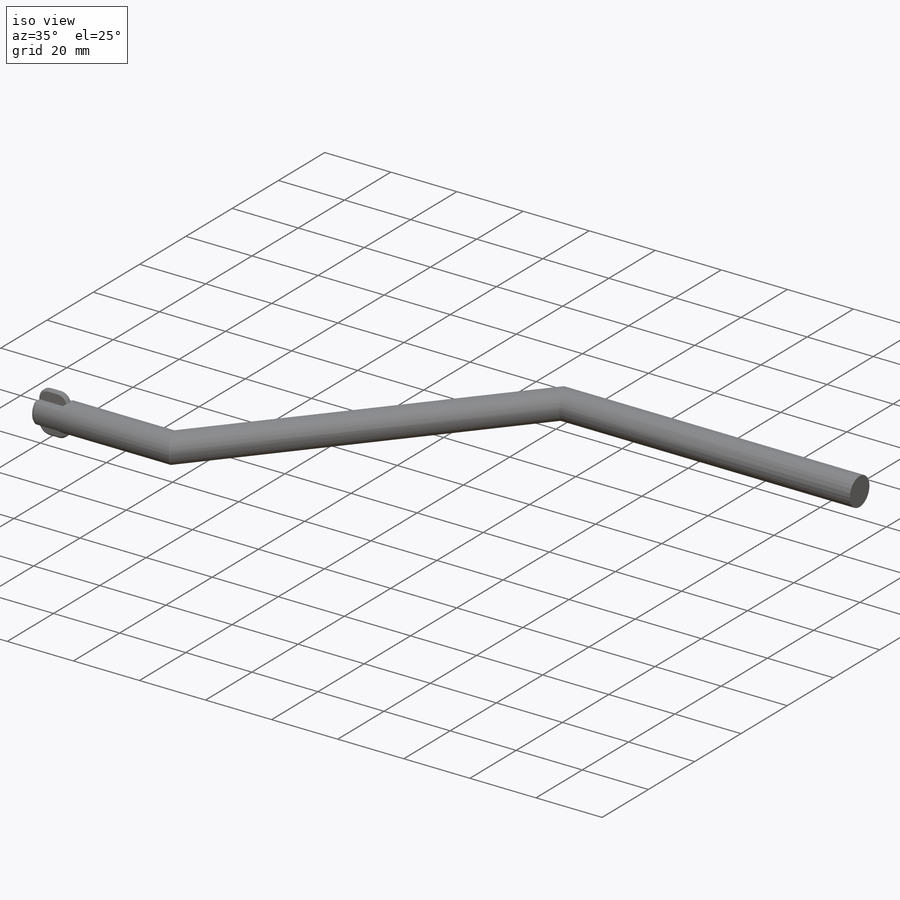
[diagram: iso view]
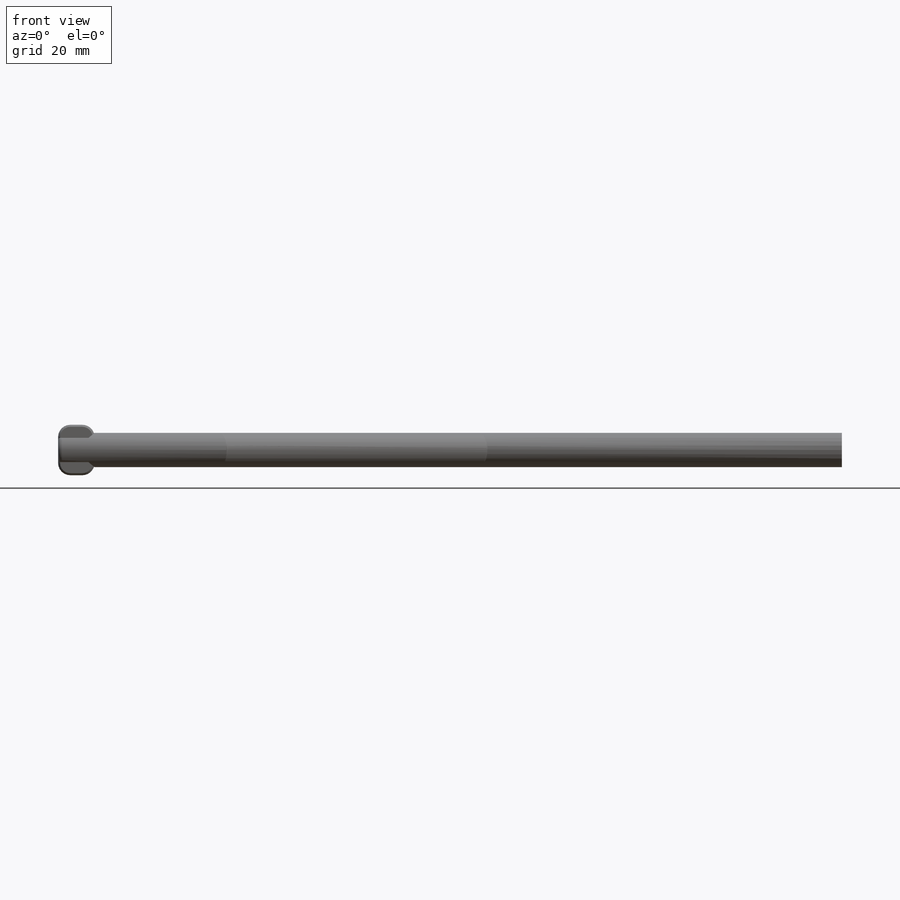
[diagram: front view]
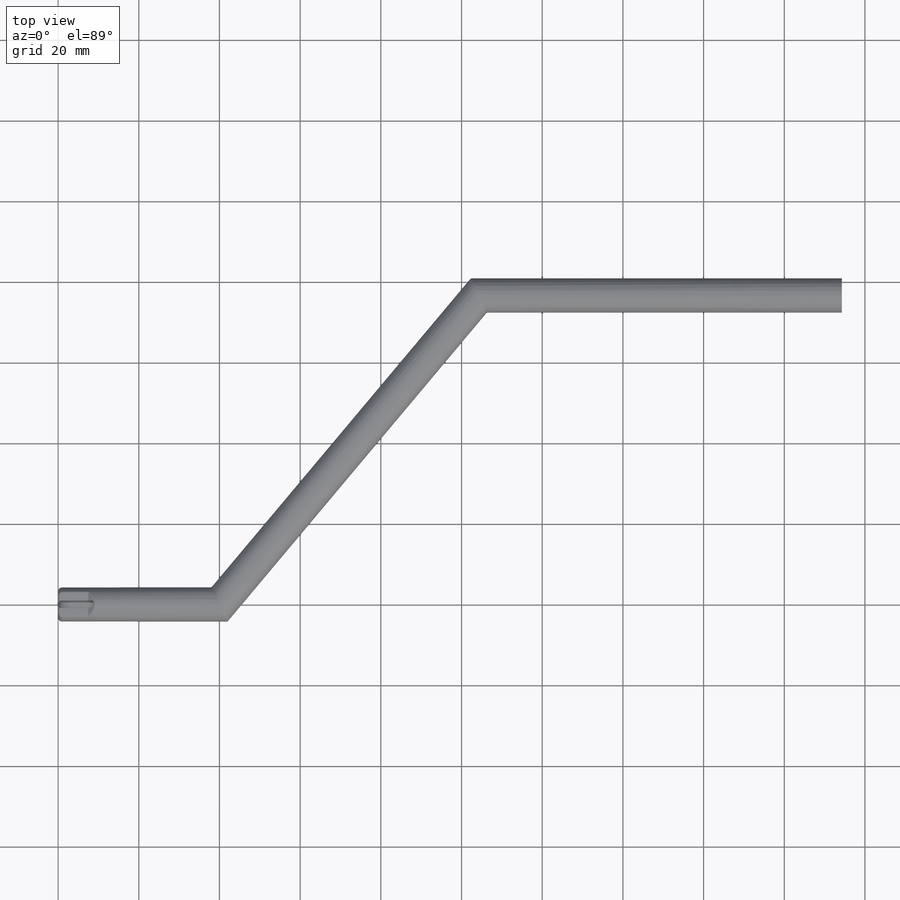
[diagram: top view]
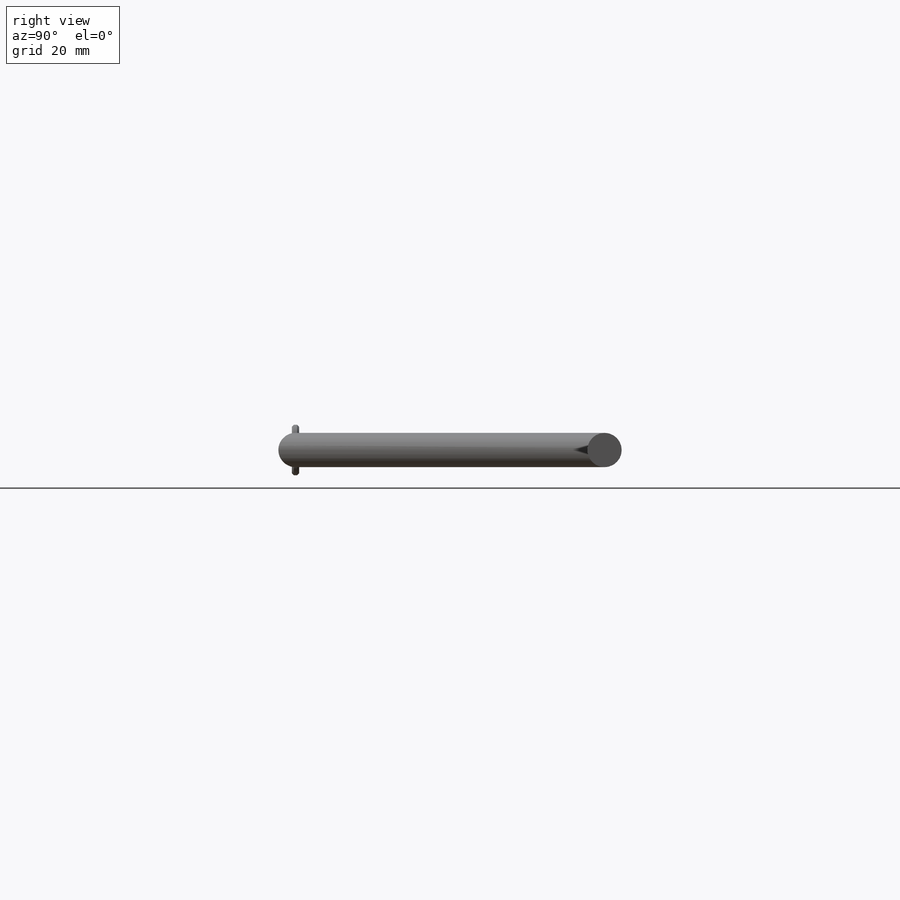
[diagram: right view]
SOLIDWORKS PART (.sldprt)
format: sldprt  version: not decoded by parser v0  size: 298,496 bytes
history: native  units: mm
features: sketch x5, fillet x4, plane x3, chamfer x2, mirror x2, material x1, sweep x1, extrude x1 (+12 scaffold rows collapsed)
feature tree (31):
  scaffold x12  (default folders/planes/origin — collapsed)
  material  "Material <not specified>"
  sketch  "Sketch1"  dims[c1.D1=40.0mm c1.D2=100.0mm c1.D3=90.0mm c1.D4=~53.699287mm c2.D4=~122.479164deg c3.D4=40.0mm c4.D4=130.0deg c4.D5=~64.278761mm c5.D5=130.0deg]
  sketch  "Sketch2"  dims[D1=8.5mm]
  sweep  "Sweep1"
  fillet  "Fillet1"  Radius=0.5mm
  plane  "Plane1"  Offset=4.25mm
  sketch  "Sketch3"  dims[c1.D1=9.0mm c1.D2=2.0mm c1.D3=2.0mm c2.D2=6.0mm c2.D1=10.0mm c3.D2=5.0mm c3.D3=9.0mm c3.D4=9.0mm c4.D3=9.0mm]
  fillet  "Fillet3"  Radius=1mm
  plane  "Plane2"  Offset=1.25mm
  sketch  "Sketch5"  dims[D1=7.5mm D2=8.0mm D3=4.0mm]
  sketch  "Sketch6"  dims[c1.D1=1.8mm c1.D2=1.0mm c1.D3=~1.000799mm c2.D2=2.0mm c2.D3=~1.656854mm c3.D2=0.9mm]
  extrude  "Boss-Extrude1"  Depth=2.25mm
  fillet  "Fillet6"  Radius=3mm
  chamfer  "Chamfer1"  Distance=0.5mm Angle=45deg
  plane  "Plane3"  Offset=4.25mm
  mirror  "Mirror4"
  mirror  "Mirror8"
  fillet  "Fillet7"  Radius=3mm
  chamfer  "Chamfer2"  Distance=0.5mm Angle=45deg
decode coverage: 12 of 15 modeling features carry decoded parameters
note: ~ marks probable driven/reference dimensions
note: suppression state not decoded; provenance and decode notes live in map.json
